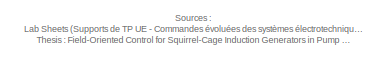
[diagram: root canvas - part 1/4, top center region]
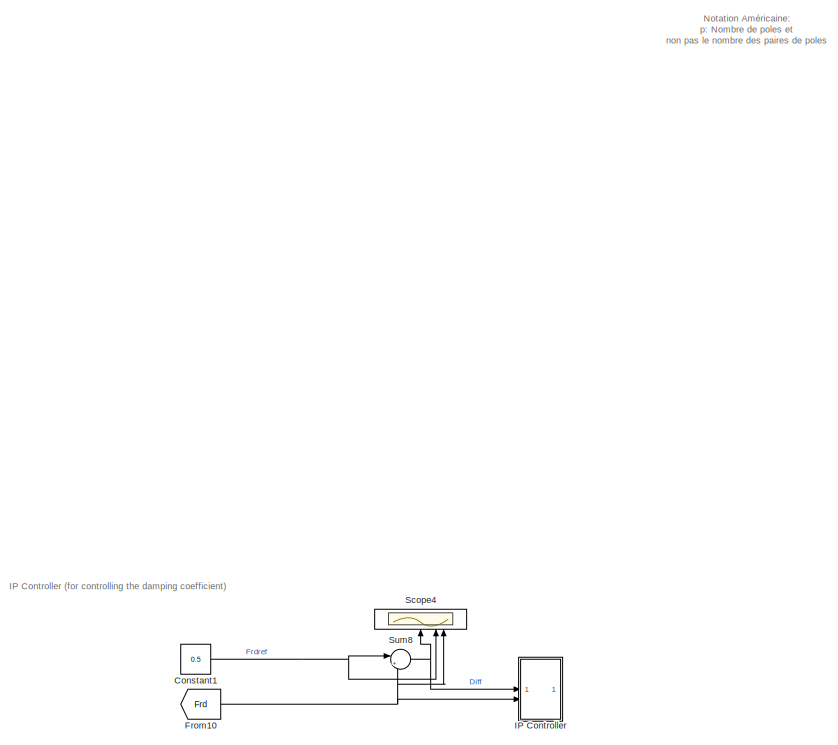
[diagram: root canvas - part 2/4, middle left region]
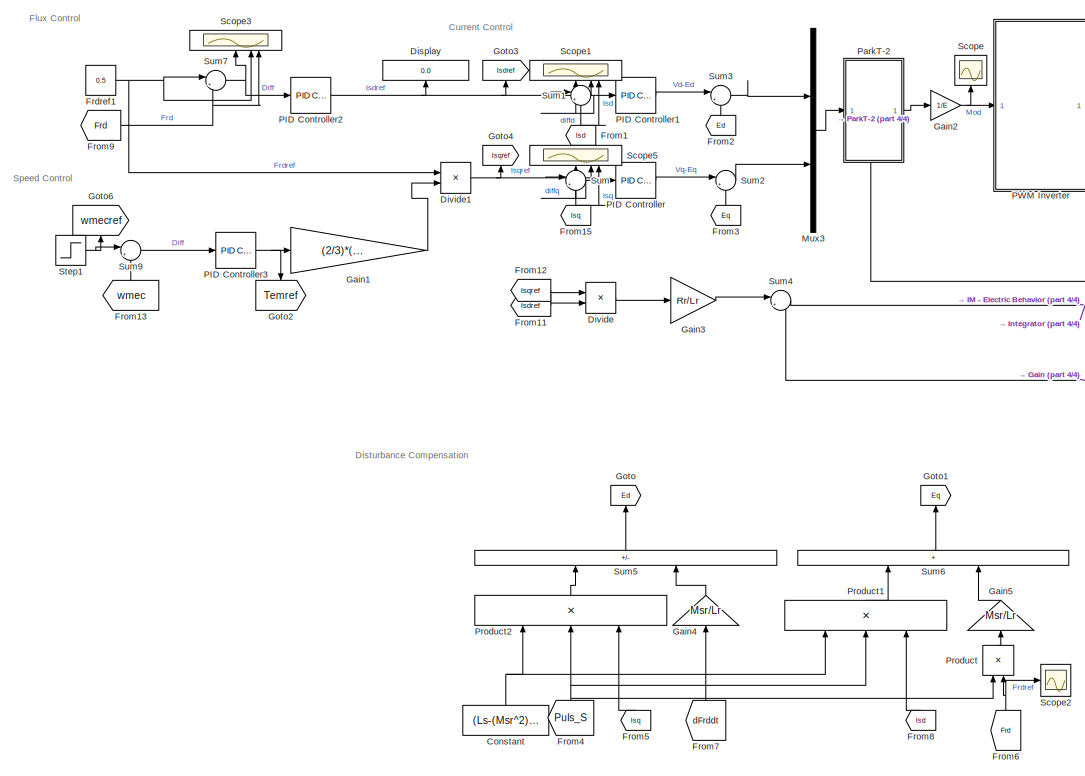
[diagram: root canvas - part 3/4, bottom center region]
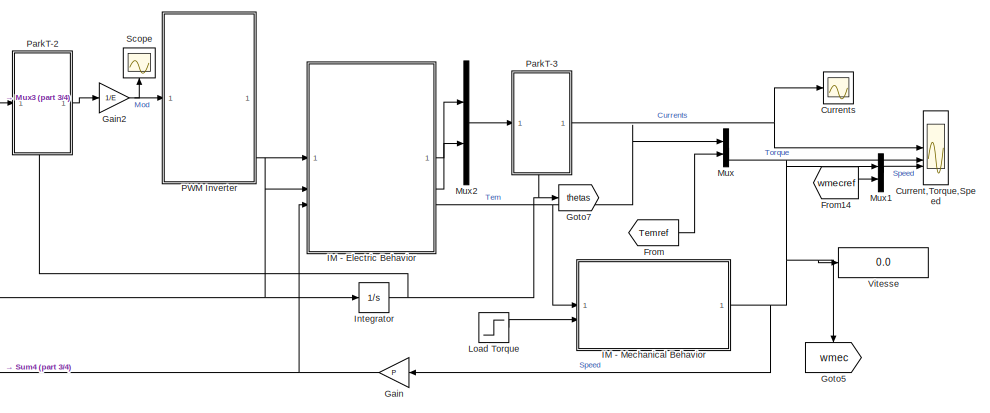
[diagram: root canvas - part 4/4, middle right region]
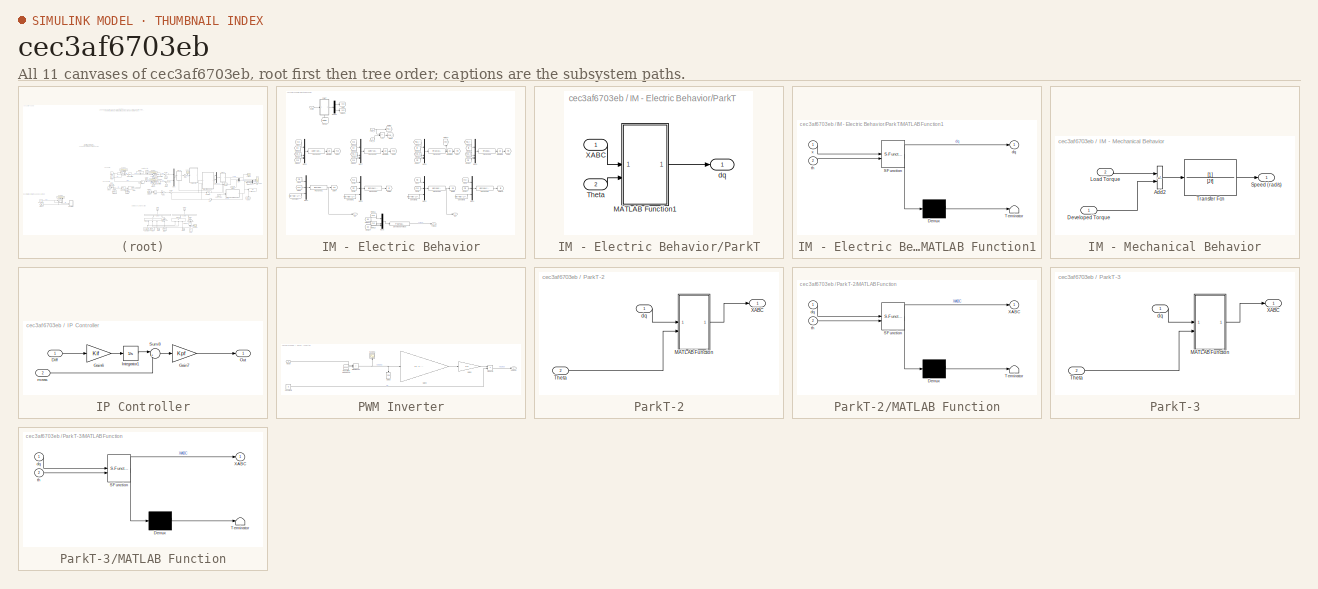
[diagram: thumbnail index - all 11 canvases of the model, root first then tree order]
MODEL slx_cec3af6703eb
KIND model
CONFIG AbsTol = auto
CONFIG EnableMultiTasking = off
CONFIG FixedStep = 0.0001
CONFIG MaxStep = auto
CONFIG MinStep = auto
CONFIG RelTol = 1e-3
CONFIG SampleTimeConstraint = Unconstrained
CONFIG SolverName = FixedStepAuto
CONFIG StartTime = 0.0
CONFIG StopTime = 2
BLOCK [Constant] Constant
  NameLocation = right
  Value = (Ls-(Msr^2)/Lr)
BLOCK [Constant] Constant1
  Commented = on
  Value = 0.5
BLOCK [Scope] Current,Torque,Speed
  Floating = off
  NumInputPorts = 3
  ScopeSpecificationString = Simulink.scopes.TimeScopeBlockCfg('CurrentConfiguration', extmgr.ConfigurationSet(extmgr.Configuration('Core','General UI',true,'FigureColor','[1 1 1]'),extmgr.Configuration('Core','Source UI',true),extmgr.Configuration('Sources','WiredSimulink',true,'DataLoggingVariableName','ScopeData1'),extmgr.Configuration('Visuals','Time Domain',true,'SerializedDisplays',{struct('MinYLimReal','-5.84308','MaxY...<+3434ch>
BLOCK [Scope] Currents
  Floating = off
  NumInputPorts = 1
  ScopeSpecificationString = Simulink.scopes.TimeScopeBlockCfg('CurrentConfiguration', extmgr.ConfigurationSet(extmgr.Configuration('Core','General UI',true),extmgr.Configuration('Core','Source UI',true),extmgr.Configuration('Sources','WiredSimulink',true),extmgr.Configuration('Visuals','Time Domain',true,'SerializedDisplays',{struct('MinYLimReal','-6.45339','MaxYLimReal','6.77917','YLabelReal','','MinYLimMag','0.00000','MaxY...<+1427ch>
BLOCK [Display] Display
  Decimation = 1
  NameLocation = right
BLOCK [Product] Divide
  Inputs = */
BLOCK [Product] Divide1
  Inputs = /*
BLOCK [Constant] Frdref1
  Value = 0.5
BLOCK [From] From
  GotoTag = Temref
BLOCK [From] From1
  GotoTag = Isd
  NameLocation = right
  TagVisibility = global
BLOCK [From] From10
  Commented = on
  GotoTag = Frd
  TagVisibility = global
BLOCK [From] From11
  GotoTag = Isdref
BLOCK [From] From12
  GotoTag = Isqref
BLOCK [From] From13
  GotoTag = wmec
  NameLocation = right
BLOCK [From] From14
  GotoTag = wmecref
BLOCK [From] From15
  GotoTag = Isq
  NameLocation = right
  TagVisibility = global
BLOCK [From] From2
  GotoTag = Ed
  NameLocation = right
BLOCK [From] From3
  GotoTag = Eq
  NameLocation = right
BLOCK [From] From4
  GotoTag = Puls_S
  NameLocation = right
  TagVisibility = global
BLOCK [From] From5
  GotoTag = Isq
  NameLocation = right
  TagVisibility = global
BLOCK [From] From6
  GotoTag = Frd
  NameLocation = right
  TagVisibility = global
BLOCK [From] From7
  GotoTag = dFrddt
  NameLocation = right
  TagVisibility = global
BLOCK [From] From8
  GotoTag = Isd
  NameLocation = right
  TagVisibility = global
BLOCK [From] From9
  GotoTag = Frd
  TagVisibility = global
BLOCK [Gain] Gain
  Gain = P
BLOCK [Gain] Gain1
  Gain = (2/3)*(1/P)*(Lr/Msr)
BLOCK [Gain] Gain2
  Gain = 1/E
BLOCK [Gain] Gain3
  Gain = Rr/Lr
BLOCK [Gain] Gain4
  Gain = Msr/Lr
  NameLocation = right
BLOCK [Gain] Gain5
  Gain = Msr/Lr
  NameLocation = right
BLOCK [Goto] Goto
  GotoTag = Ed
  NameLocation = right
BLOCK [Goto] Goto1
  GotoTag = Eq
  NameLocation = right
BLOCK [Goto] Goto2
  GotoTag = Temref
  NameLocation = left
BLOCK [Goto] Goto3
  GotoTag = Isdref
  NameLocation = right
BLOCK [Goto] Goto4
  GotoTag = Isqref
  NameLocation = right
BLOCK [Goto] Goto5
  GotoTag = wmec
  NameLocation = left
BLOCK [Goto] Goto6
  GotoTag = wmecref
  NameLocation = right
BLOCK [Goto] Goto7
  GotoTag = thetas
  TagVisibility = global
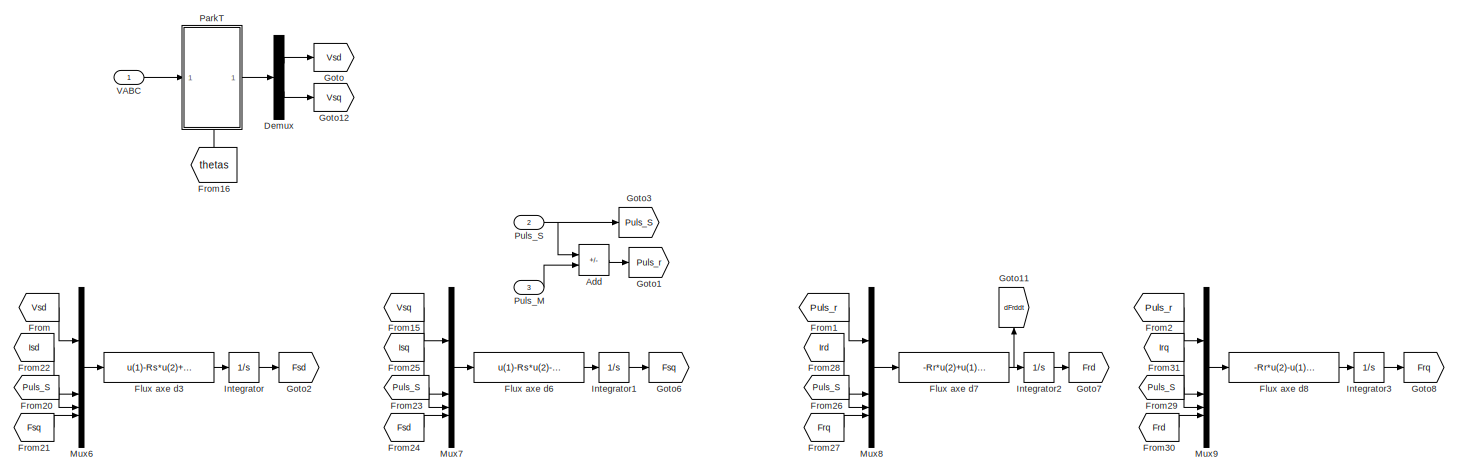
[diagram: IM - Electric Behavior - part 1/2, full width, top band]
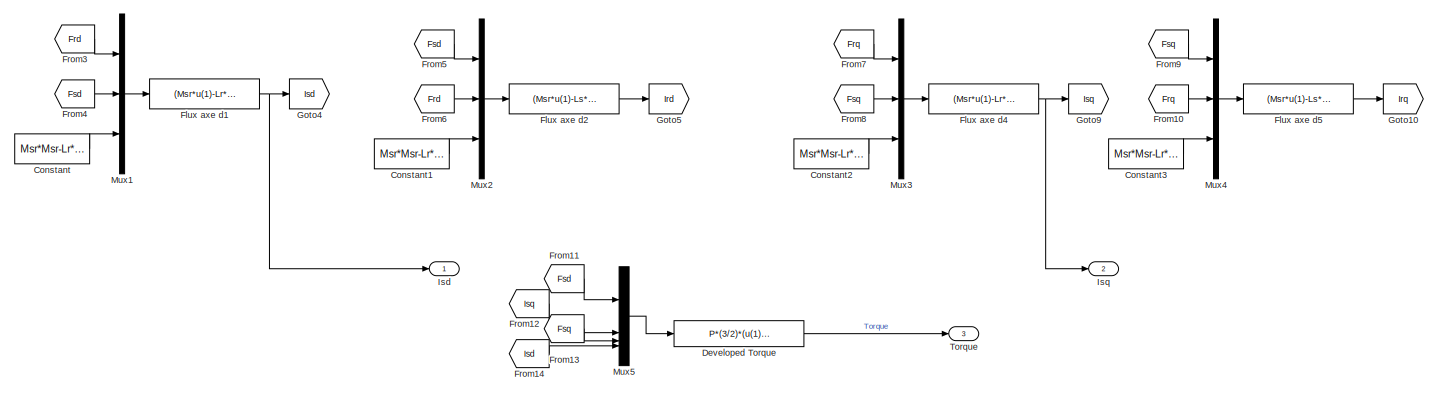
[diagram: IM - Electric Behavior - part 2/2, full width, bottom band]
BLOCK [SubSystem] IM - Electric Behavior
BLOCK [Sum] IM - Electric Behavior/Add
  IconShape = rectangular
  Inputs = +-
BLOCK [Constant] IM - Electric Behavior/Constant
  Value = Msr*Msr-Lr*Ls
BLOCK [Constant] IM - Electric Behavior/Constant1
  Value = Msr*Msr-Lr*Ls
BLOCK [Constant] IM - Electric Behavior/Constant2
  Value = Msr*Msr-Lr*Ls
BLOCK [Constant] IM - Electric Behavior/Constant3
  Value = Msr*Msr-Lr*Ls
BLOCK [Demux] IM - Electric Behavior/Demux
  Outputs = 2
BLOCK [Fcn] IM - Electric Behavior/Developed Torque
  Expr = P*(3/2)*(u(1)*u(2)-u(3)*u(4))
BLOCK [Fcn] IM - Electric Behavior/Flux axe d1
  Expr = (Msr*u(1)-Lr*u(2))/u(3)
BLOCK [Fcn] IM - Electric Behavior/Flux axe d2
  Expr = (Msr*u(1)-Ls*u(2))/u(3)
BLOCK [Fcn] IM - Electric Behavior/Flux axe d3
  Expr = u(1)-Rs*u(2)+u(3)*u(4)
BLOCK [Fcn] IM - Electric Behavior/Flux axe d4
  Expr = (Msr*u(1)-Lr*u(2))/u(3)
BLOCK [Fcn] IM - Electric Behavior/Flux axe d5
  Expr = (Msr*u(1)-Ls*u(2))/u(3)
BLOCK [Fcn] IM - Electric Behavior/Flux axe d6
  Expr = u(1)-Rs*u(2)-u(3)*u(4)
BLOCK [Fcn] IM - Electric Behavior/Flux axe d7
  Expr = -Rr*u(2)+u(1)*u(4)
BLOCK [Fcn] IM - Electric Behavior/Flux axe d8
  Expr = -Rr*u(2)-u(1)*u(4)
BLOCK [From] IM - Electric Behavior/From
  GotoTag = Vsd
BLOCK [From] IM - Electric Behavior/From1
  GotoTag = Puls_r
BLOCK [From] IM - Electric Behavior/From10
  GotoTag = Frq
BLOCK [From] IM - Electric Behavior/From11
  GotoTag = Fsd
BLOCK [From] IM - Electric Behavior/From12
  GotoTag = Isq
  TagVisibility = global
BLOCK [From] IM - Electric Behavior/From13
  GotoTag = Fsq
BLOCK [From] IM - Electric Behavior/From14
  GotoTag = Isd
  TagVisibility = global
BLOCK [From] IM - Electric Behavior/From15
  GotoTag = Vsq
BLOCK [From] IM - Electric Behavior/From16
  GotoTag = thetas
  NameLocation = right
  TagVisibility = global
BLOCK [From] IM - Electric Behavior/From2
  GotoTag = Puls_r
BLOCK [From] IM - Electric Behavior/From20
  GotoTag = Puls_S
  IconDisplay = Signal name
  TagVisibility = global
BLOCK [From] IM - Electric Behavior/From21
  GotoTag = Fsq
BLOCK [From] IM - Electric Behavior/From22
  GotoTag = Isd
  TagVisibility = global
BLOCK [From] IM - Electric Behavior/From23
  GotoTag = Puls_S
  IconDisplay = Signal name
  TagVisibility = global
BLOCK [From] IM - Electric Behavior/From24
  GotoTag = Fsd
BLOCK [From] IM - Electric Behavior/From25
  GotoTag = Isq
  TagVisibility = global
BLOCK [From] IM - Electric Behavior/From26
  GotoTag = Puls_S
  IconDisplay = Signal name
  TagVisibility = global
BLOCK [From] IM - Electric Behavior/From27
  GotoTag = Frq
BLOCK [From] IM - Electric Behavior/From28
  GotoTag = Ird
BLOCK [From] IM - Electric Behavior/From29
  GotoTag = Puls_S
  IconDisplay = Signal name
  TagVisibility = global
BLOCK [From] IM - Electric Behavior/From3
  GotoTag = Frd
  TagVisibility = global
BLOCK [From] IM - Electric Behavior/From30
  GotoTag = Frd
  TagVisibility = global
BLOCK [From] IM - Electric Behavior/From31
  GotoTag = Irq
BLOCK [From] IM - Electric Behavior/From4
  GotoTag = Fsd
BLOCK [From] IM - Electric Behavior/From5
  GotoTag = Fsd
BLOCK [From] IM - Electric Behavior/From6
  GotoTag = Frd
  TagVisibility = global
BLOCK [From] IM - Electric Behavior/From7
  GotoTag = Frq
BLOCK [From] IM - Electric Behavior/From8
  GotoTag = Fsq
BLOCK [From] IM - Electric Behavior/From9
  GotoTag = Fsq
BLOCK [Goto] IM - Electric Behavior/Goto
  GotoTag = Vsd
BLOCK [Goto] IM - Electric Behavior/Goto1
  GotoTag = Puls_r
BLOCK [Goto] IM - Electric Behavior/Goto10
  GotoTag = Irq
BLOCK [Goto] IM - Electric Behavior/Goto11
  GotoTag = dFrddt
  NameLocation = right
  TagVisibility = global
BLOCK [Goto] IM - Electric Behavior/Goto12
  GotoTag = Vsq
BLOCK [Goto] IM - Electric Behavior/Goto2
  GotoTag = Fsd
BLOCK [Goto] IM - Electric Behavior/Goto3
  GotoTag = Puls_S
  TagVisibility = global
BLOCK [Goto] IM - Electric Behavior/Goto4
  GotoTag = Isd
  TagVisibility = global
BLOCK [Goto] IM - Electric Behavior/Goto5
  GotoTag = Ird
BLOCK [Goto] IM - Electric Behavior/Goto6
  GotoTag = Fsq
BLOCK [Goto] IM - Electric Behavior/Goto7
  GotoTag = Frd
  TagVisibility = global
BLOCK [Goto] IM - Electric Behavior/Goto8
  GotoTag = Frq
BLOCK [Goto] IM - Electric Behavior/Goto9
  GotoTag = Isq
  TagVisibility = global
BLOCK [Integrator] IM - Electric Behavior/Integrator
BLOCK [Integrator] IM - Electric Behavior/Integrator1
BLOCK [Integrator] IM - Electric Behavior/Integrator2
BLOCK [Integrator] IM - Electric Behavior/Integrator3
BLOCK [Outport] IM - Electric Behavior/Isd
BLOCK [Outport] IM - Electric Behavior/Isq
  Port = 2
BLOCK [Mux] IM - Electric Behavior/Mux1
  DisplayOption = bar
  Inputs = 3
BLOCK [Mux] IM - Electric Behavior/Mux2
  DisplayOption = bar
  Inputs = 3
BLOCK [Mux] IM - Electric Behavior/Mux3
  DisplayOption = bar
  Inputs = 3
BLOCK [Mux] IM - Electric Behavior/Mux4
  DisplayOption = bar
  Inputs = 3
BLOCK [Mux] IM - Electric Behavior/Mux5
  DisplayOption = bar
BLOCK [Mux] IM - Electric Behavior/Mux6
  DisplayOption = bar
BLOCK [Mux] IM - Electric Behavior/Mux7
  DisplayOption = bar
BLOCK [Mux] IM - Electric Behavior/Mux8
  DisplayOption = bar
BLOCK [Mux] IM - Electric Behavior/Mux9
  DisplayOption = bar
BLOCK [SubSystem] IM - Electric Behavior/ParkT
  PortSchema = {"entries":[{"content":{"sides":[{"content":{"connectorIds":["In1"]},"type":"ConnectorPlacement.EquallySpacedRectSide","uuid":"228dfcfc-5d6b-4d2b-a954-ee5f3fee8856"},{"content":{"connectorIds":["Out1"],"side":"RIGHT"},"type":"ConnectorPlacement.EquallySpacedRectSide","uuid":"1b1b4c30-bceb-4aa5-9a3a-183aa9b64903"},{"content":{"connectorIds":[],"side":"TOP"},"type":"ConnectorPlacement.EquallySpacedR...<+389ch>
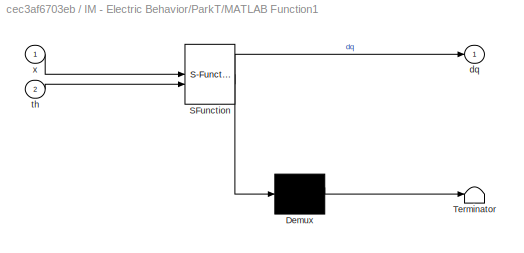
BLOCK [SubSystem] IM - Electric Behavior/ParkT/MATLAB Function1
  ErrorFcn = Stateflow.Translate.translate
  PermitHierarchicalResolution = ExplicitOnly
  SFBlockType = MATLAB Function
  TreatAsAtomicUnit = on
BLOCK [Demux] IM - Electric Behavior/ParkT/MATLAB Function1/ Demux 
  Outputs = 1
BLOCK [S-Function] IM - Electric Behavior/ParkT/MATLAB Function1/ SFunction 
  EnableBusSupport = on
  FunctionName = sf_sfun
  PortCounts = [2 2]
  SFcnIsStateOwnerBlock = off
  SFunctionDeploymentMode = off
  Tag = Stateflow S-Function 1
BLOCK [Terminator] IM - Electric Behavior/ParkT/MATLAB Function1/ Terminator 
BLOCK [Outport] IM - Electric Behavior/ParkT/MATLAB Function1/dq
BLOCK [Inport] IM - Electric Behavior/ParkT/MATLAB Function1/th
  Port = 2
BLOCK [Inport] IM - Electric Behavior/ParkT/MATLAB Function1/x
BLOCK [Inport] IM - Electric Behavior/ParkT/Theta
  Port = 2
BLOCK [Inport] IM - Electric Behavior/ParkT/XABC
BLOCK [Outport] IM - Electric Behavior/ParkT/dq
BLOCK [Inport] IM - Electric Behavior/Puls_M
  Port = 3
BLOCK [Inport] IM - Electric Behavior/Puls_S
  Port = 2
BLOCK [Outport] IM - Electric Behavior/Torque
  Port = 3
BLOCK [Inport] IM - Electric Behavior/VABC
BLOCK [SubSystem] IM - Mechanical Behavior
BLOCK [Sum] IM - Mechanical Behavior/Add2
  IconShape = rectangular
  Inputs = -+
BLOCK [Inport] IM - Mechanical Behavior/Developed Torque
BLOCK [Inport] IM - Mechanical Behavior/Load Torque
  Port = 2
BLOCK [Outport] IM - Mechanical Behavior/Speed (rad//s)
BLOCK [TransferFcn] IM - Mechanical Behavior/Transfer Fcn
  Denominator = [J f]
BLOCK [SubSystem] IP Controller
  Commented = on
BLOCK [Inport] IP Controller/Diff
BLOCK [Gain] IP Controller/Gain6
  Gain = Kif
BLOCK [Gain] IP Controller/Gain7
  Gain = Kpf
BLOCK [Integrator] IP Controller/Integrator1
  InitialCondition = 0.5/Msr
BLOCK [Outport] IP Controller/Out
BLOCK [Sum] IP Controller/Sum8
  Inputs = |+-
BLOCK [Inport] IP Controller/meas
  Port = 2
BLOCK [Integrator] Integrator
BLOCK [Step] Load Torque
  After = 0.5
  SampleTime = 0
  Time = 2
BLOCK [Mux] Mux
  DisplayOption = bar
  Inputs = 2
BLOCK [Mux] Mux1
  DisplayOption = bar
  Inputs = 2
BLOCK [Mux] Mux2
  DisplayOption = bar
  Inputs = 2
BLOCK [Mux] Mux3
  DisplayOption = bar
  Inputs = 2
BLOCK [Reference] PID Controller  REF=slpidlib/PID Controller
  SourceBlock = slpidlib/PID Controller
  SourceType = PID 1dof
BLOCK [Reference] PID Controller1  REF=slpidlib/PID Controller
  SourceBlock = slpidlib/PID Controller
  SourceType = PID 1dof
BLOCK [Reference] PID Controller2  REF=slpidlib/PID Controller
  SourceBlock = slpidlib/PID Controller
  SourceType = PID 1dof
BLOCK [Reference] PID Controller3  REF=slpidlib/PID Controller
  SourceBlock = slpidlib/PID Controller
  SourceType = PID 1dof
BLOCK [SubSystem] PWM Inverter
BLOCK [Constant] PWM Inverter/Constant1
  Value = E
BLOCK [Gain] PWM Inverter/Gain2
  Gain = [2 -1 -1; -1 2 -1; -1 -1 2]
  Multiplication = Matrix(K*u)
BLOCK [Gain] PWM Inverter/Gain6
  Gain = 1/3
BLOCK [Goto] PWM Inverter/Goto8
  GotoTag = Cmd
  NameLocation = left
BLOCK [RelationalOperator] PWM Inverter/GreaterThan
  InputSameDT = off
  Operator = >
  OutDataTypeStr = boolean
  RndMeth = Simplest
BLOCK [Product] PWM Inverter/Product3
BLOCK [Reference] PWM Inverter/Repeating Sequence  REF=simulink/Sources/Repeating
Sequence
  SourceBlock = simulink/Sources/Repeating\nSequence
  SourceType = Repeating table
BLOCK [Scope] PWM Inverter/Scope6
  Floating = off
  NameLocation = right
  NumInputPorts = 1
  ScopeSpecificationString = Simulink.scopes.TimeScopeBlockCfg('CurrentConfiguration', extmgr.ConfigurationSet(extmgr.Configuration('Core','General UI',true),extmgr.Configuration('Core','Source UI',true),extmgr.Configuration('Sources','WiredSimulink',true,'DataLoggingVariableName','ScopeData1'),extmgr.Configuration('Visuals','Time Domain',true,'SerializedDisplays',{struct('MinYLimReal','-0.04962','MaxYLimReal','1.03469','YLab...<+1464ch>
BLOCK [Outport] PWM Inverter/Va,Vb,Vc
BLOCK [Inport] PWM Inverter/mABX
BLOCK [SubSystem] ParkT-2
  PortSchema = {"entries":[{"content":{"sides":[{"content":{"connectorIds":["In1"]},"type":"ConnectorPlacement.EquallySpacedRectSide","uuid":"ed5ee07b-b316-480c-b9ec-652acf4aaee1"},{"content":{"connectorIds":["Out1"],"side":"RIGHT"},"type":"ConnectorPlacement.EquallySpacedRectSide","uuid":"52d50e66-916b-4a4a-9cee-3d7b4015ccc4"},{"content":{"connectorIds":[],"side":"TOP"},"type":"ConnectorPlacement.EquallySpacedR...<+389ch>
BLOCK [SubSystem] ParkT-2/MATLAB Function
  ErrorFcn = Stateflow.Translate.translate
  PermitHierarchicalResolution = ExplicitOnly
  SFBlockType = MATLAB Function
  TreatAsAtomicUnit = on
BLOCK [Demux] ParkT-2/MATLAB Function/ Demux 
  Outputs = 1
BLOCK [S-Function] ParkT-2/MATLAB Function/ SFunction 
  EnableBusSupport = on
  FunctionName = sf_sfun
  PortCounts = [2 2]
  SFcnIsStateOwnerBlock = off
  SFunctionDeploymentMode = off
  Tag = Stateflow S-Function 3
BLOCK [Terminator] ParkT-2/MATLAB Function/ Terminator 
BLOCK [Outport] ParkT-2/MATLAB Function/XABC
BLOCK [Inport] ParkT-2/MATLAB Function/dq
BLOCK [Inport] ParkT-2/MATLAB Function/th
  Port = 2
BLOCK [Inport] ParkT-2/Theta
  Port = 2
BLOCK [Outport] ParkT-2/XABC
BLOCK [Inport] ParkT-2/dq
BLOCK [SubSystem] ParkT-3
  PortSchema = {"entries":[{"content":{"sides":[{"content":{"connectorIds":["In1"]},"type":"ConnectorPlacement.EquallySpacedRectSide","uuid":"ed5ee07b-b316-480c-b9ec-652acf4aaee1"},{"content":{"connectorIds":["Out1"],"side":"RIGHT"},"type":"ConnectorPlacement.EquallySpacedRectSide","uuid":"52d50e66-916b-4a4a-9cee-3d7b4015ccc4"},{"content":{"connectorIds":[],"side":"TOP"},"type":"ConnectorPlacement.EquallySpacedR...<+389ch>
BLOCK [SubSystem] ParkT-3/MATLAB Function
  ErrorFcn = Stateflow.Translate.translate
  PermitHierarchicalResolution = ExplicitOnly
  SFBlockType = MATLAB Function
  TreatAsAtomicUnit = on
BLOCK [Demux] ParkT-3/MATLAB Function/ Demux 
  Outputs = 1
BLOCK [S-Function] ParkT-3/MATLAB Function/ SFunction 
  EnableBusSupport = on
  FunctionName = sf_sfun
  PortCounts = [2 2]
  SFcnIsStateOwnerBlock = off
  SFunctionDeploymentMode = off
  Tag = Stateflow S-Function 4
BLOCK [Terminator] ParkT-3/MATLAB Function/ Terminator 
BLOCK [Outport] ParkT-3/MATLAB Function/XABC
BLOCK [Inport] ParkT-3/MATLAB Function/dq
BLOCK [Inport] ParkT-3/MATLAB Function/th
  Port = 2
BLOCK [Inport] ParkT-3/Theta
  Port = 2
BLOCK [Outport] ParkT-3/XABC
BLOCK [Inport] ParkT-3/dq
BLOCK [Product] Product
  NameLocation = right
BLOCK [Product] Product1
  Inputs = 3
  NameLocation = right
BLOCK [Product] Product2
  Inputs = 3
  NameLocation = right
BLOCK [Scope] Scope
  Floating = off
  NameLocation = right
  NumInputPorts = 1
  ScopeSpecificationString = Simulink.scopes.TimeScopeBlockCfg('CurrentConfiguration', extmgr.ConfigurationSet(extmgr.Configuration('Core','General UI',true),extmgr.Configuration('Core','Source UI',true),extmgr.Configuration('Sources','WiredSimulink',true,'DataLoggingVariableName','ScopeData2'),extmgr.Configuration('Visuals','Time Domain',true,'SerializedDisplays',{struct('MinYLimReal','-0.96978','MaxYLimReal','1.09593','YLab...<+1451ch>
BLOCK [Scope] Scope1
  Floating = off
  NameLocation = right
  NumInputPorts = 3
  ScopeSpecificationString = Simulink.scopes.TimeScopeBlockCfg('CurrentConfiguration', extmgr.ConfigurationSet(extmgr.Configuration('Core','General UI',true,'FigureColor',[1 1 1]),extmgr.Configuration('Core','Source UI',true),extmgr.Configuration('Sources','WiredSimulink',true,'DataLoggingVariableName','ScopeData3'),extmgr.Configuration('Visuals','Time Domain',true,'SerializedDisplays',{struct('MinYLimReal','-0.88591','MaxYLi...<+2674ch>
BLOCK [Scope] Scope2
  Floating = off
  NumInputPorts = 1
  ScopeSpecificationString = Simulink.scopes.TimeScopeBlockCfg('CurrentConfiguration', extmgr.ConfigurationSet(extmgr.Configuration('Core','General UI',true),extmgr.Configuration('Core','Source UI',true),extmgr.Configuration('Sources','WiredSimulink',true,'DataLoggingVariableName','ScopeData3'),extmgr.Configuration('Visuals','Time Domain',true,'SerializedDisplays',{struct('MinYLimReal','-0.02032','MaxYLimReal','0.52346','YLab...<+1444ch>
BLOCK [Scope] Scope3
  Floating = off
  NameLocation = right
  NumInputPorts = 3
  ScopeSpecificationString = Simulink.scopes.TimeScopeBlockCfg('CurrentConfiguration', extmgr.ConfigurationSet(extmgr.Configuration('Core','General UI',true,'FigureColor',[1 1 1]),extmgr.Configuration('Core','Source UI',true),extmgr.Configuration('Sources','WiredSimulink',true,'DataLoggingVariableName','ScopeData3'),extmgr.Configuration('Visuals','Time Domain',true,'SerializedDisplays',{struct('MinYLimReal','-0.0625','MaxYLim...<+2651ch>
BLOCK [Scope] Scope4
  Commented = on
  Floating = off
  NameLocation = right
  NumInputPorts = 3
  ScopeSpecificationString = Simulink.scopes.TimeScopeBlockCfg('CurrentConfiguration', extmgr.ConfigurationSet(extmgr.Configuration('Core','General UI',true),extmgr.Configuration('Core','Source UI',true),extmgr.Configuration('Sources','WiredSimulink',true,'DataLoggingVariableName','ScopeData4'),extmgr.Configuration('Visuals','Time Domain',true,'SerializedDisplays',{struct('MinYLimReal','-1.84911','MaxYLimReal','0.76101','YLab...<+2411ch>
BLOCK [Scope] Scope5
  Floating = off
  NameLocation = right
  NumInputPorts = 3
  ScopeSpecificationString = Simulink.scopes.TimeScopeBlockCfg('CurrentConfiguration', extmgr.ConfigurationSet(extmgr.Configuration('Core','General UI',true,'FigureColor',[1 1 1]),extmgr.Configuration('Core','Source UI',true),extmgr.Configuration('Sources','WiredSimulink',true,'DataLoggingVariableName','ScopeData4'),extmgr.Configuration('Visuals','Time Domain',true,'SerializedDisplays',{struct('MinYLimReal','-1.12931','MaxYLi...<+2649ch>
BLOCK [Step] Step1
  After = 150
  SampleTime = 0
BLOCK [Sum] Sum
  Inputs = |+-
BLOCK [Sum] Sum1
  Inputs = |+-
BLOCK [Sum] Sum2
  Inputs = |++
BLOCK [Sum] Sum3
  Inputs = |++
BLOCK [Sum] Sum4
  Inputs = |++
BLOCK [Sum] Sum5
  IconShape = rectangular
  Inputs = -+
  NameLocation = right
BLOCK [Sum] Sum6
  IconShape = rectangular
  NameLocation = right
BLOCK [Sum] Sum7
  Inputs = |+-
BLOCK [Sum] Sum8
  Commented = on
  Inputs = |+-
BLOCK [Sum] Sum9
  Inputs = |+-
BLOCK [Display] Vitesse
  Decimation = 1
ANNOTATION (root): Current Control
ANNOTATION (root): Disturbance Compensation
ANNOTATION (root): Flux Control
ANNOTATION (root): IP Controller (for controlling the damping coefficient)
ANNOTATION (root): Notation Américaine: p: Nombre de poles et non pas le nombre des paires de poles
ANNOTATION (root): Sources : Lab Sheets (Supports de TP UE - Commandes évoluées des systèmes électrotechniques) Thesis : Field-Oriented Control for Squirrel-Cage Induction Generators in Pump as Turbines Applications - Samuel Ferreira Amaro
ANNOTATION (root): Speed Control
NET Constant1:1 -> Scope4:2, Sum8:1
NET Constant:1 -> Product1:1, Product2:1
NET Divide1:1 -> Goto4:1, Scope5:2, Sum:1
LINE Divide:1 -> Gain3:1
NET Frdref1:1 -> Divide1:1, Scope3:2, Sum7:1
NET From10:1 -> IP Controller:2, Scope4:3, Sum8:2
LINE From11:1 -> Divide:2
LINE From12:1 -> Divide:1
LINE From13:1 -> Sum9:2
LINE From14:1 -> Mux1:2
NET From15:1 -> Scope5:3, Sum:2
NET From1:1 -> Scope1:3, Sum1:2
LINE From2:1 -> Sum3:2
LINE From3:1 -> Sum2:2
NET From4:1 -> Product1:2, Product2:2, Product:1
LINE From5:1 -> Product2:3
NET From6:1 -> Product:2, Scope2:1
LINE From7:1 -> Gain4:1
LINE From8:1 -> Product1:3
NET From9:1 -> Scope3:3, Sum7:2
LINE From:1 -> Mux:2
LINE Gain1:1 -> Divide1:2
NET Gain2:1 -> PWM Inverter:1, Scope:1
LINE Gain3:1 -> Sum4:1
LINE Gain4:1 -> Sum5:2
LINE Gain5:1 -> Sum6:2
NET Gain:1 -> IM - Electric Behavior:3, Sum4:2
LINE IM - Electric Behavior/Add:1 -> IM - Electric Behavior/Goto1:1
LINE IM - Electric Behavior/Constant1:1 -> IM - Electric Behavior/Mux2:3
LINE IM - Electric Behavior/Constant2:1 -> IM - Electric Behavior/Mux3:3
LINE IM - Electric Behavior/Constant3:1 -> IM - Electric Behavior/Mux4:3
LINE IM - Electric Behavior/Constant:1 -> IM - Electric Behavior/Mux1:3
LINE IM - Electric Behavior/Demux:1 -> IM - Electric Behavior/Goto:1
LINE IM - Electric Behavior/Demux:2 -> IM - Electric Behavior/Goto12:1
LINE IM - Electric Behavior/Developed Torque:1 -> IM - Electric Behavior/Torque:1
NET IM - Electric Behavior/Flux axe d1:1 -> IM - Electric Behavior/Goto4:1, IM - Electric Behavior/Isd:1
LINE IM - Electric Behavior/Flux axe d2:1 -> IM - Electric Behavior/Goto5:1
LINE IM - Electric Behavior/Flux axe d3:1 -> IM - Electric Behavior/Integrator:1
NET IM - Electric Behavior/Flux axe d4:1 -> IM - Electric Behavior/Goto9:1, IM - Electric Behavior/Isq:1
LINE IM - Electric Behavior/Flux axe d5:1 -> IM - Electric Behavior/Goto10:1
LINE IM - Electric Behavior/Flux axe d6:1 -> IM - Electric Behavior/Integrator1:1
NET IM - Electric Behavior/Flux axe d7:1 -> IM - Electric Behavior/Goto11:1, IM - Electric Behavior/Integrator2:1
LINE IM - Electric Behavior/Flux axe d8:1 -> IM - Electric Behavior/Integrator3:1
LINE IM - Electric Behavior/From10:1 -> IM - Electric Behavior/Mux4:2
LINE IM - Electric Behavior/From11:1 -> IM - Electric Behavior/Mux5:1
LINE IM - Electric Behavior/From12:1 -> IM - Electric Behavior/Mux5:2
LINE IM - Electric Behavior/From13:1 -> IM - Electric Behavior/Mux5:3
LINE IM - Electric Behavior/From14:1 -> IM - Electric Behavior/Mux5:4
LINE IM - Electric Behavior/From15:1 -> IM - Electric Behavior/Mux7:1
LINE IM - Electric Behavior/From16:1 -> IM - Electric Behavior/ParkT:2
LINE IM - Electric Behavior/From1:1 -> IM - Electric Behavior/Mux8:1
LINE IM - Electric Behavior/From20:1 -> IM - Electric Behavior/Mux6:3
LINE IM - Electric Behavior/From21:1 -> IM - Electric Behavior/Mux6:4
LINE IM - Electric Behavior/From22:1 -> IM - Electric Behavior/Mux6:2
LINE IM - Electric Behavior/From23:1 -> IM - Electric Behavior/Mux7:3
LINE IM - Electric Behavior/From24:1 -> IM - Electric Behavior/Mux7:4
LINE IM - Electric Behavior/From25:1 -> IM - Electric Behavior/Mux7:2
LINE IM - Electric Behavior/From26:1 -> IM - Electric Behavior/Mux8:3
LINE IM - Electric Behavior/From27:1 -> IM - Electric Behavior/Mux8:4
LINE IM - Electric Behavior/From28:1 -> IM - Electric Behavior/Mux8:2
LINE IM - Electric Behavior/From29:1 -> IM - Electric Behavior/Mux9:3
LINE IM - Electric Behavior/From2:1 -> IM - Electric Behavior/Mux9:1
LINE IM - Electric Behavior/From30:1 -> IM - Electric Behavior/Mux9:4
LINE IM - Electric Behavior/From31:1 -> IM - Electric Behavior/Mux9:2
LINE IM - Electric Behavior/From3:1 -> IM - Electric Behavior/Mux1:1
LINE IM - Electric Behavior/From4:1 -> IM - Electric Behavior/Mux1:2
LINE IM - Electric Behavior/From5:1 -> IM - Electric Behavior/Mux2:1
LINE IM - Electric Behavior/From6:1 -> IM - Electric Behavior/Mux2:2
LINE IM - Electric Behavior/From7:1 -> IM - Electric Behavior/Mux3:1
LINE IM - Electric Behavior/From8:1 -> IM - Electric Behavior/Mux3:2
LINE IM - Electric Behavior/From9:1 -> IM - Electric Behavior/Mux4:1
LINE IM - Electric Behavior/From:1 -> IM - Electric Behavior/Mux6:1
LINE IM - Electric Behavior/Integrator1:1 -> IM - Electric Behavior/Goto6:1
LINE IM - Electric Behavior/Integrator2:1 -> IM - Electric Behavior/Goto7:1
LINE IM - Electric Behavior/Integrator3:1 -> IM - Electric Behavior/Goto8:1
LINE IM - Electric Behavior/Integrator:1 -> IM - Electric Behavior/Goto2:1
LINE IM - Electric Behavior/Mux1:1 -> IM - Electric Behavior/Flux axe d1:1
LINE IM - Electric Behavior/Mux2:1 -> IM - Electric Behavior/Flux axe d2:1
LINE IM - Electric Behavior/Mux3:1 -> IM - Electric Behavior/Flux axe d4:1
LINE IM - Electric Behavior/Mux4:1 -> IM - Electric Behavior/Flux axe d5:1
LINE IM - Electric Behavior/Mux5:1 -> IM - Electric Behavior/Developed Torque:1
LINE IM - Electric Behavior/Mux6:1 -> IM - Electric Behavior/Flux axe d3:1
LINE IM - Electric Behavior/Mux7:1 -> IM - Electric Behavior/Flux axe d6:1
LINE IM - Electric Behavior/Mux8:1 -> IM - Electric Behavior/Flux axe d7:1
LINE IM - Electric Behavior/Mux9:1 -> IM - Electric Behavior/Flux axe d8:1
LINE IM - Electric Behavior/ParkT/MATLAB Function1:1 -> IM - Electric Behavior/ParkT/dq:1
LINE IM - Electric Behavior/ParkT/Theta:1 -> IM - Electric Behavior/ParkT/MATLAB Function1:2
LINE IM - Electric Behavior/ParkT/XABC:1 -> IM - Electric Behavior/ParkT/MATLAB Function1:1
LINE IM - Electric Behavior/ParkT:1 -> IM - Electric Behavior/Demux:1
LINE IM - Electric Behavior/Puls_M:1 -> IM - Electric Behavior/Add:2
NET IM - Electric Behavior/Puls_S:1 -> IM - Electric Behavior/Add:1, IM - Electric Behavior/Goto3:1
LINE IM - Electric Behavior/VABC:1 -> IM - Electric Behavior/ParkT:1
LINE IM - Electric Behavior:1 -> Mux2:1
LINE IM - Electric Behavior:2 -> Mux2:2
NET IM - Electric Behavior:3 -> IM - Mechanical Behavior:1, Mux:1
LINE IM - Mechanical Behavior/Add2:1 -> IM - Mechanical Behavior/Transfer Fcn:1
LINE IM - Mechanical Behavior/Developed Torque:1 -> IM - Mechanical Behavior/Add2:2
LINE IM - Mechanical Behavior/Load Torque:1 -> IM - Mechanical Behavior/Add2:1
LINE IM - Mechanical Behavior/Transfer Fcn:1 -> IM - Mechanical Behavior/Speed (rad//s):1
NET IM - Mechanical Behavior:1 -> Gain:1, Goto5:1, Mux1:1, Vitesse:1
LINE IP Controller/Diff:1 -> IP Controller/Gain6:1
LINE IP Controller/Gain6:1 -> IP Controller/Integrator1:1
LINE IP Controller/Gain7:1 -> IP Controller/Out:1
LINE IP Controller/Integrator1:1 -> IP Controller/Sum8:1
LINE IP Controller/Sum8:1 -> IP Controller/Gain7:1
LINE IP Controller/meas:1 -> IP Controller/Sum8:2
NET Integrator:1 -> Goto7:1, ParkT-2:2, ParkT-3:2
LINE Load Torque:1 -> IM - Mechanical Behavior:2
LINE Mux1:1 -> Current,Torque,Speed:3
LINE Mux2:1 -> ParkT-3:1
LINE Mux3:1 -> ParkT-2:1
LINE Mux:1 -> Current,Torque,Speed:2
LINE PID Controller1:1 -> Sum3:1
NET PID Controller2:1 -> Display:1, Goto3:1, Scope1:2, Sum1:1
NET PID Controller3:1 -> Gain1:1, Goto2:1
LINE PID Controller:1 -> Sum2:1
LINE PWM Inverter/Constant1:1 -> PWM Inverter/Product3:2
LINE PWM Inverter/Gain2:1 -> PWM Inverter/Gain6:1
LINE PWM Inverter/Gain6:1 -> PWM Inverter/Product3:1
NET PWM Inverter/GreaterThan:1 -> PWM Inverter/Gain2:1, PWM Inverter/Goto8:1, PWM Inverter/Scope6:1
LINE PWM Inverter/Product3:1 -> PWM Inverter/Va,Vb,Vc:1
LINE PWM Inverter/Repeating Sequence:1 -> PWM Inverter/GreaterThan:2
LINE PWM Inverter/mABX:1 -> PWM Inverter/GreaterThan:1
LINE PWM Inverter:1 -> IM - Electric Behavior:1
LINE ParkT-2/MATLAB Function:1 -> ParkT-2/XABC:1
LINE ParkT-2/Theta:1 -> ParkT-2/MATLAB Function:2
LINE ParkT-2/dq:1 -> ParkT-2/MATLAB Function:1
LINE ParkT-2:1 -> Gain2:1
LINE ParkT-3/MATLAB Function:1 -> ParkT-3/XABC:1
LINE ParkT-3/Theta:1 -> ParkT-3/MATLAB Function:2
LINE ParkT-3/dq:1 -> ParkT-3/MATLAB Function:1
NET ParkT-3:1 -> Current,Torque,Speed:1, Currents:1
LINE Product1:1 -> Sum6:1
LINE Product2:1 -> Sum5:1
LINE Product:1 -> Gain5:1
NET Step1:1 -> Goto6:1, Sum9:1
NET Sum1:1 -> PID Controller1:1, Scope1:1
LINE Sum2:1 -> Mux3:2
LINE Sum3:1 -> Mux3:1
NET Sum4:1 -> IM - Electric Behavior:2, Integrator:1
LINE Sum5:1 -> Goto:1
LINE Sum6:1 -> Goto1:1
NET Sum7:1 -> PID Controller2:1, Scope3:1
NET Sum8:1 -> IP Controller:1, Scope4:1
LINE Sum9:1 -> PID Controller3:1
NET Sum:1 -> PID Controller:1, Scope5:1
note: NET lines group one-source signal fan-out (src -> all destinations, sorted); 1:1 wires keep LINE
CHART IM - Electric Behavior/ParkT/MATLAB Function1 states=1 transitions=1
  STATE_LABEL 'eML_blk_kernel()'
  STATE_LABEL 'SCRIPT:\nfunction dq = Park(x,th)\n% vd=(2/3)*(u1*cos(th)+u2*cos(th-2*pi/3)+u3*cos(th+2*pi/3));\n% vq=(2/3)*(-u1*sin(th)-u2*sin(th-2*pi/3)-u3*sin(th+2*pi/3));\nP=(2/3)*[ cos(th) cos(th-2*pi/3) cos(th+2*pi/3);\n         -sin(th) -sin(th-2*pi/3) -sin(th+2*pi/3)  ];\ndq=P*x;\n% xd=prod(1);\n% xq=prod(2);'
CHART ParkT-2/MATLAB Function states=1 transitions=1
  STATE_LABEL 'eML_blk_kernel()'
  STATE_LABEL 'SCRIPT:\nfunction XABC= Parkinv(dq,th)\n\nparkinv = [ cos(th),           -sin(th); \n          cos(th-2*pi/3), -sin(th-2*pi/3); \n          cos(th+2*pi/3), -sin(th+2*pi/3)];\n\nXABC = parkinv * [dq];\n\n% x1=temp(1);\n% x2=temp(2);\n% x3=temp(3);'
CHART ParkT-3/MATLAB Function states=1 transitions=1
  STATE_LABEL 'eML_blk_kernel()'
  STATE_LABEL 'SCRIPT:\nfunction XABC= Parkinv(dq,th)\n\nparkinv = [ cos(th),           -sin(th); \n          cos(th-2*pi/3), -sin(th-2*pi/3); \n          cos(th+2*pi/3), -sin(th+2*pi/3)];\n\nXABC = parkinv * [dq];\n\n% x1=temp(1);\n% x2=temp(2);\n% x3=temp(3);'
CHART  states=0 transitions=0
CHART  states=0 transitions=0
CHART  states=0 transitions=0
